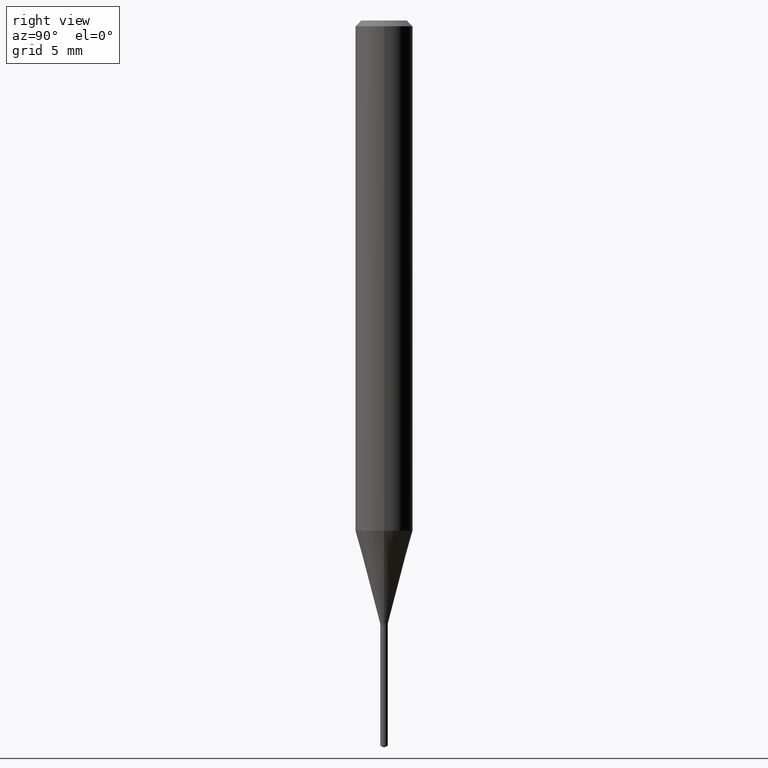
[diagram: clean part render]
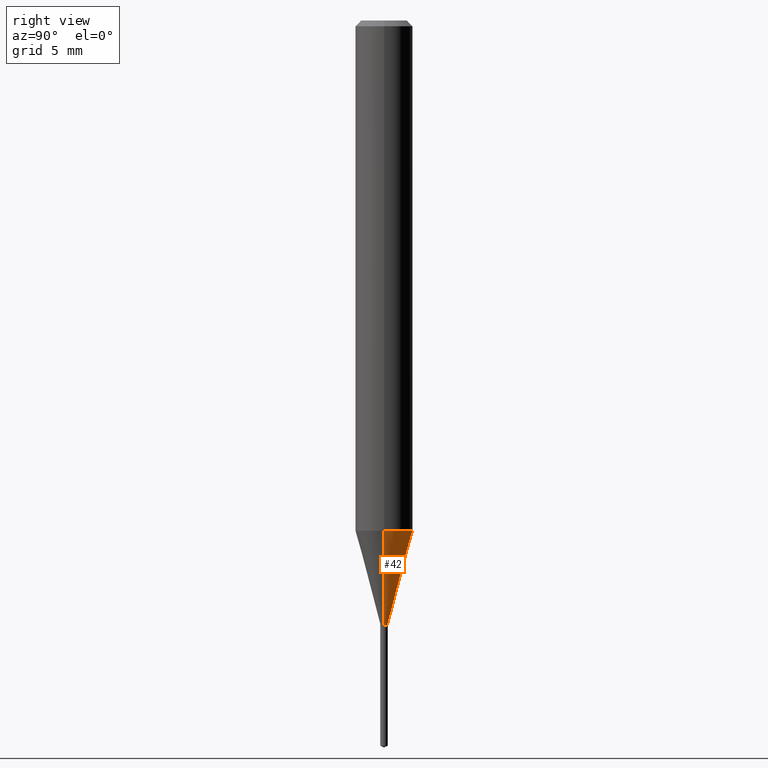
[diagram: same view with one face highlighted and labeled with its STEP entity id]
A machine part, right view. The second image highlights one B-rep face of the part: STEP entity #42.
In plain terms, the highlighted conical surface has half-angle 15 deg.
Its self-contained STEP definition (entity closure, byte-faithful):
#12 = LINE ( 'NONE', #203, #266 ) ;
#17 = LINE ( 'NONE', #133, #434 ) ;
#33 = DIRECTION ( 'NONE',  ( -2.445468806185136597E-29, 3.491481338843145583E-15, 1.000000000000000000 ) ) ;
#42 = ADVANCED_FACE ( 'NONE', ( #274 ), #234, .T. ) ;
#58 = VERTEX_POINT ( 'NONE', #377 ) ;
#75 = EDGE_CURVE ( 'NONE', #301, #298, #17, .T. ) ;
#94 = CARTESIAN_POINT ( 'NONE',  ( 0.007700000000000000247, -4.389490339193602123E-15, -1.241799999999999793 ) ) ;
#105 = CARTESIAN_POINT ( 'NONE',  ( 3.036783163520702277E-29, -4.335721526575417446E-15, -1.241799999999999793 ) ) ;
#117 = VERTEX_POINT ( 'NONE', #94 ) ;
#125 = DIRECTION ( 'NONE',  ( -0.2588190451025213501, 5.211531920934551042E-15, 0.9659258262890682012 ) ) ;
#133 = CARTESIAN_POINT ( 'NONE',  ( -0.007700000000000000247, -4.281009735921889447E-15, -1.241799999999999793 ) ) ;
#149 = AXIS2_PLACEMENT_3D ( 'NONE', #355, #415, #446 ) ;
#157 = DIRECTION ( 'NONE',  ( 1.000000000000000000, -6.982962677686256455E-15, 0.000000000000000000 ) ) ;
#167 = DIRECTION ( 'NONE',  ( 0.2588190451025213501, 1.565188264969621968E-15, 0.9659258262890682012 ) ) ;
#203 = CARTESIAN_POINT ( 'NONE',  ( 0.007700000000000000247, -4.389490339193602123E-15, -1.241799999999999793 ) ) ;
#234 = CONICAL_SURFACE ( 'NONE', #470, 0.007700000000000000247, 0.2617993877991500740 ) ;
#235 = ORIENTED_EDGE ( 'NONE', *, *, #440, .F. ) ;
#241 = EDGE_CURVE ( 'NONE', #117, #58, #12, .T. ) ;
#259 = AXIS2_PLACEMENT_3D ( 'NONE', #105, #33, #357 ) ;
#266 = VECTOR ( 'NONE', #167, 39.37007874015747433 ) ;
#272 = EDGE_CURVE ( 'NONE', #117, #301, #359, .T. ) ;
#274 = FACE_OUTER_BOUND ( 'NONE', #442, .T. ) ;
#298 = VERTEX_POINT ( 'NONE', #439 ) ;
#301 = VERTEX_POINT ( 'NONE', #482 ) ;
#337 = CARTESIAN_POINT ( 'NONE',  ( 3.036783163520702277E-29, -4.335721526575417446E-15, -1.241799999999999793 ) ) ;
#351 = CIRCLE ( 'NONE', #149, 0.05905000000000013710 ) ;
#355 = CARTESIAN_POINT ( 'NONE',  ( 2.568131543195755093E-29, -3.666611218300530537E-15, -1.050159191031337924 ) ) ;
#357 = DIRECTION ( 'NONE',  ( 1.000000000000000000, -6.982962677686256455E-15, 0.000000000000000000 ) ) ;
#359 = CIRCLE ( 'NONE', #259, 0.007700000000000000247 ) ;
#377 = CARTESIAN_POINT ( 'NONE',  ( 0.05905000000000013710, -4.078955164417905458E-15, -1.050159191031337924 ) ) ;
#396 = ORIENTED_EDGE ( 'NONE', *, *, #75, .T. ) ;
#400 = ORIENTED_EDGE ( 'NONE', *, *, #272, .T. ) ;
#415 = DIRECTION ( 'NONE',  ( -2.445468806185136597E-29, 3.491481338843145583E-15, 1.000000000000000000 ) ) ;
#417 = DIRECTION ( 'NONE',  ( -2.445468806185136597E-29, 3.491481338843145583E-15, 1.000000000000000000 ) ) ;
#434 = VECTOR ( 'NONE', #125, 39.37007874015747433 ) ;
#439 = CARTESIAN_POINT ( 'NONE',  ( -0.05905000000000013710, -3.247035732834190256E-15, -1.050159191031337924 ) ) ;
#440 = EDGE_CURVE ( 'NONE', #58, #298, #351, .T. ) ;
#442 = EDGE_LOOP ( 'NONE', ( #400, #396, #235, #459 ) ) ;
#446 = DIRECTION ( 'NONE',  ( 1.000000000000000000, -6.982962677686264344E-15, 0.000000000000000000 ) ) ;
#459 = ORIENTED_EDGE ( 'NONE', *, *, #241, .F. ) ;
#470 = AXIS2_PLACEMENT_3D ( 'NONE', #337, #417, #157 ) ;
#482 = CARTESIAN_POINT ( 'NONE',  ( -0.007700000000000000247, -4.284152069126848942E-15, -1.241799999999999793 ) ) ;